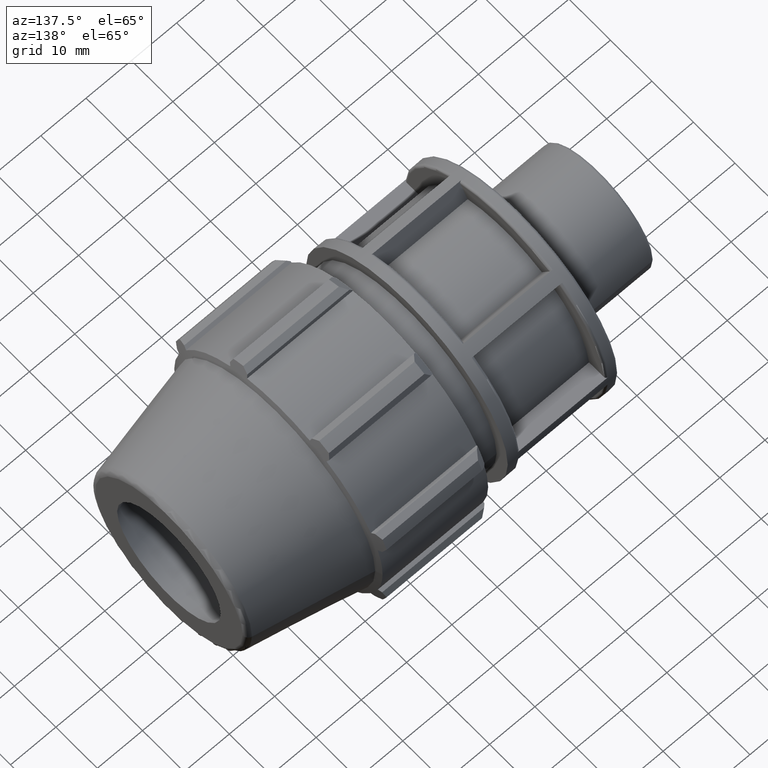
[diagram: clean part render]
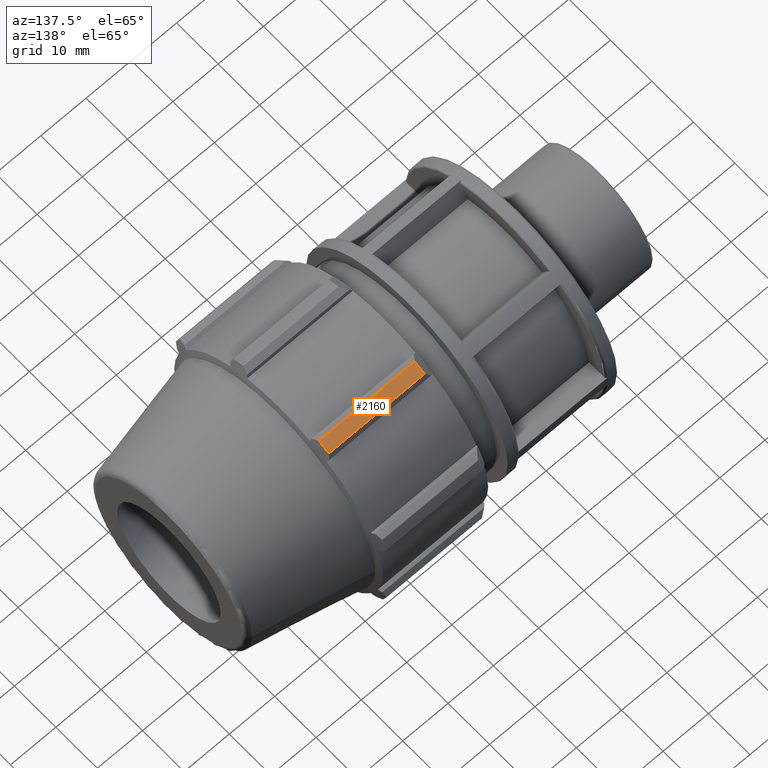
[diagram: same view with one face highlighted and labeled with its STEP entity id]
A machine part, auxiliary view. The second image highlights one B-rep face of the part: STEP entity #2160.
In plain terms, the highlighted cylindrical surface (partial cylindrical patch) has radius 27 mm, axis along (1, 0, 0).
Its self-contained STEP definition (entity closure, byte-faithful):
#167=LINE('',#3678,#311);
#195=LINE('',#3800,#339);
#311=VECTOR('',#2772,21.0896780755192);
#339=VECTOR('',#2876,21.0896780755192);
#387=CYLINDRICAL_SURFACE('',#2372,27.);
#590=FACE_OUTER_BOUND('',#728,.T.);
#728=EDGE_LOOP('',(#1882,#1883,#1884,#1885));
#811=CIRCLE('',#2309,27.);
#819=CIRCLE('',#2325,27.);
#1000=VERTEX_POINT('',#3658);
#1001=VERTEX_POINT('',#3662);
#1005=VERTEX_POINT('',#3677);
#1016=VERTEX_POINT('',#3716);
#1257=EDGE_CURVE('',#1000,#1001,#811,.T.);
#1264=EDGE_CURVE('',#1001,#1005,#167,.T.);
#1280=EDGE_CURVE('',#1005,#1016,#819,.T.);
#1322=EDGE_CURVE('',#1016,#1000,#195,.T.);
#1882=ORIENTED_EDGE('',*,*,#1257,.F.);
#1883=ORIENTED_EDGE('',*,*,#1322,.F.);
#1884=ORIENTED_EDGE('',*,*,#1280,.F.);
#1885=ORIENTED_EDGE('',*,*,#1264,.F.);
#2160=ADVANCED_FACE('',(#590),#387,.T.);
#2309=AXIS2_PLACEMENT_3D('',#3663,#2761,#2762);
#2325=AXIS2_PLACEMENT_3D('',#3717,#2804,#2805);
#2372=AXIS2_PLACEMENT_3D('',#3833,#2927,#2928);
#2761=DIRECTION('center_axis',(-1.,0.,0.));
#2762=DIRECTION('ref_axis',(0.,1.,0.));
#2772=DIRECTION('',(1.,0.,0.));
#2804=DIRECTION('center_axis',(1.,0.,0.));
#2805=DIRECTION('ref_axis',(0.,0.,-1.));
#2876=DIRECTION('',(-1.,0.,0.));
#2927=DIRECTION('center_axis',(1.,0.,0.));
#2928=DIRECTION('ref_axis',(0.,1.,0.));
#3658=CARTESIAN_POINT('',(49.12,9.14236962468839,25.4050600795506));
#3662=CARTESIAN_POINT('',(49.12,11.4994587009708,24.428721816433));
#3663=CARTESIAN_POINT('Origin',(49.12,0.,0.));
#3677=CARTESIAN_POINT('',(70.2096780755192,11.4994587009708,24.428721816433));
#3678=CARTESIAN_POINT('',(58.8548390377596,11.4994587009708,24.428721816433));
#3716=CARTESIAN_POINT('',(70.2096780755192,9.1423696246884,25.4050600795506));
#3717=CARTESIAN_POINT('Origin',(70.2096780755192,0.,0.));
#3800=CARTESIAN_POINT('',(58.8548390377596,9.14236962468839,25.4050600795506));
#3833=CARTESIAN_POINT('Origin',(58.8548390377596,0.,0.));